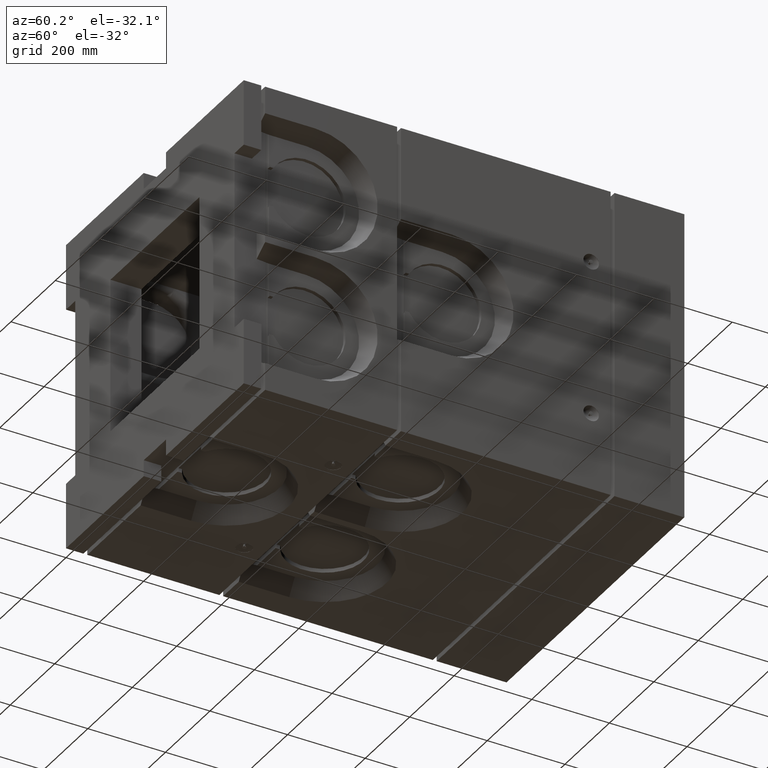
[diagram: clean part render]
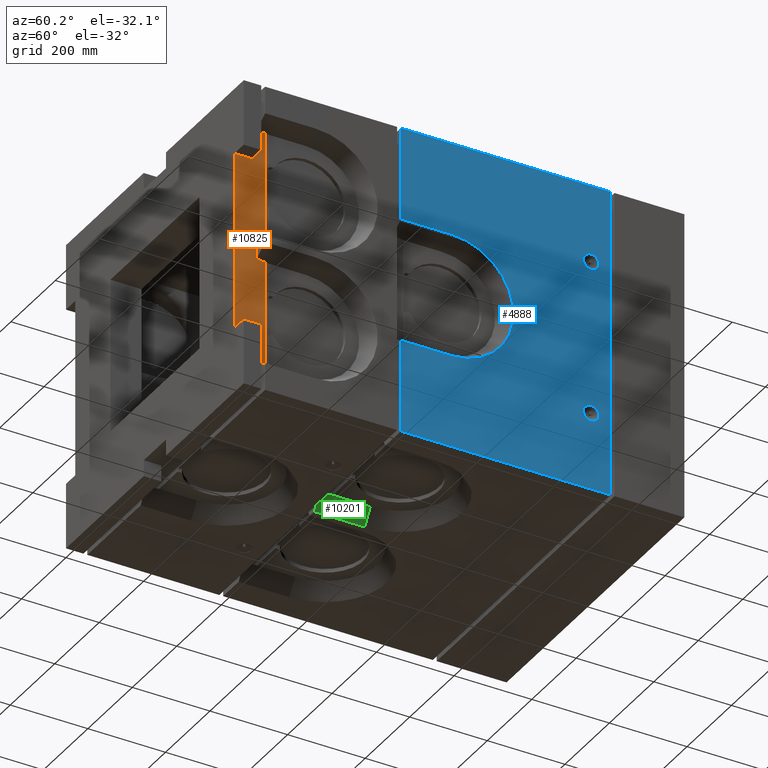
[diagram: same view with three faces highlighted in distinct colors, each labeled with its STEP entity id]
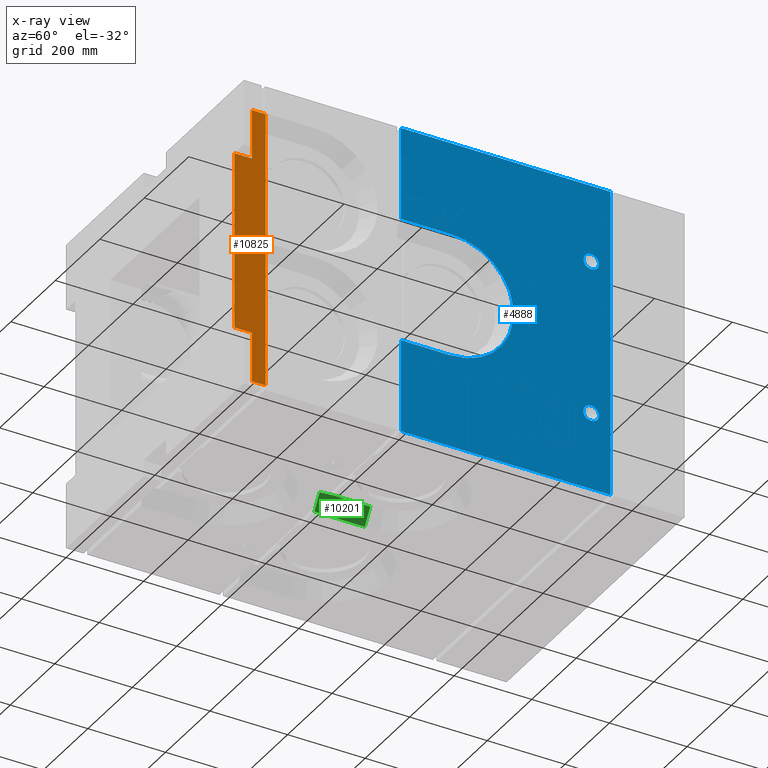
[diagram: x-ray of the same camera — body ghosted, the three highlighted faces saturated]
A machine part, auxiliary view with three faces highlighted in distinct colors.
The next image is the same camera in x-ray (body ghosted, the three faces saturated) — at least one of them is partly hidden behind the body in this view.
Their STEP definitions:

[orange] entity #10825 — the highlighted planar face has unit normal (1, 0, 0).
#22 = DIRECTION ( 'NONE',  ( 0.000000000000000000, 0.000000000000000000, -1.000000000000000000 ) ) ;
#688 = VECTOR ( 'NONE', #2612, 1000.000000000000000 ) ;
#950 = DIRECTION ( 'NONE',  ( 0.000000000000000000, 0.000000000000000000, -1.000000000000000000 ) ) ;
#2051 = LINE ( 'NONE', #26406, #688 ) ;
#2274 = VERTEX_POINT ( 'NONE', #20068 ) ;
#2612 = DIRECTION ( 'NONE',  ( -0.000000000000000000, 1.000000000000000000, -0.000000000000000000 ) ) ;
#2895 = LINE ( 'NONE', #8653, #16009 ) ;
#2911 = DIRECTION ( 'NONE',  ( 1.000000000000000000, 0.000000000000000000, 0.000000000000000000 ) ) ;
#3329 = ORIENTED_EDGE ( 'NONE', *, *, #11539, .T. ) ;
#3465 = LINE ( 'NONE', #22449, #26083 ) ;
#3762 = CARTESIAN_POINT ( 'NONE',  ( 357.9999999999998295, 79.99999999999998579, -358.0000000000001705 ) ) ;
#3853 = VECTOR ( 'NONE', #19615, 1000.000000000000000 ) ;
#3964 = VERTEX_POINT ( 'NONE', #19888 ) ;
#4665 = VECTOR ( 'NONE', #22, 1000.000000000000000 ) ;
#6412 = LINE ( 'NONE', #6477, #4665 ) ;
#6477 = CARTESIAN_POINT ( 'NONE',  ( 357.9999999999998295, 44.99999999999998579, 357.9999999999998863 ) ) ;
#6901 = VERTEX_POINT ( 'NONE', #16057 ) ;
#7357 = CARTESIAN_POINT ( 'NONE',  ( 357.9999999999998295, -1.387778780781445676E-14, 229.9999999999998295 ) ) ;
#7852 = ORIENTED_EDGE ( 'NONE', *, *, #24863, .F. ) ;
#7935 = CARTESIAN_POINT ( 'NONE',  ( 357.9999999999998295, 79.99999999999998579, 357.9999999999998863 ) ) ;
#8081 = EDGE_CURVE ( 'NONE', #21889, #21266, #3465, .T. ) ;
#8444 = CARTESIAN_POINT ( 'NONE',  ( 357.9999999999998295, 44.99999999999998579, -358.0000000000001705 ) ) ;
#8503 = VECTOR ( 'NONE', #10500, 1000.000000000000000 ) ;
#8653 = CARTESIAN_POINT ( 'NONE',  ( 357.9999999999998295, 44.99999999999998579, 357.9999999999998863 ) ) ;
#9481 = CARTESIAN_POINT ( 'NONE',  ( 357.9999999999998295, -1.387778780781445676E-14, -230.0000000000001421 ) ) ;
#10492 = EDGE_CURVE ( 'NONE', #6901, #3964, #11259, .T. ) ;
#10500 = DIRECTION ( 'NONE',  ( -0.000000000000000000, 1.000000000000000000, -0.000000000000000000 ) ) ;
#10825 = ADVANCED_FACE ( 'NONE', ( #25149 ), #26886, .T. ) ;
#11191 = VERTEX_POINT ( 'NONE', #20806 ) ;
#11259 = LINE ( 'NONE', #9481, #15651 ) ;
#11312 = CARTESIAN_POINT ( 'NONE',  ( 357.9999999999998295, -1.387778780781445676E-14, -230.0000000000001421 ) ) ;
#11431 = CARTESIAN_POINT ( 'NONE',  ( 357.9999999999998295, 44.99999999999998579, 357.9999999999998863 ) ) ;
#11460 = DIRECTION ( 'NONE',  ( -0.000000000000000000, 1.000000000000000000, -0.000000000000000000 ) ) ;
#11539 = EDGE_CURVE ( 'NONE', #3964, #2274, #6412, .T. ) ;
#11848 = ORIENTED_EDGE ( 'NONE', *, *, #14320, .T. ) ;
#13159 = AXIS2_PLACEMENT_3D ( 'NONE', #11431, #2911, #950 ) ;
#14320 = EDGE_CURVE ( 'NONE', #2274, #20858, #27469, .T. ) ;
#14420 = ORIENTED_EDGE ( 'NONE', *, *, #26198, .T. ) ;
#14681 = CARTESIAN_POINT ( 'NONE',  ( 357.9999999999998295, 44.99999999999998579, 357.9999999999998863 ) ) ;
#14931 = ORIENTED_EDGE ( 'NONE', *, *, #23697, .F. ) ;
#15157 = DIRECTION ( 'NONE',  ( 0.000000000000000000, 0.000000000000000000, -1.000000000000000000 ) ) ;
#15600 = ORIENTED_EDGE ( 'NONE', *, *, #10492, .T. ) ;
#15651 = VECTOR ( 'NONE', #11460, 1000.000000000000000 ) ;
#15941 = LINE ( 'NONE', #11312, #3853 ) ;
#16009 = VECTOR ( 'NONE', #15157, 1000.000000000000000 ) ;
#16050 = ORIENTED_EDGE ( 'NONE', *, *, #8081, .F. ) ;
#16057 = CARTESIAN_POINT ( 'NONE',  ( 357.9999999999998295, -1.387778780781445676E-14, -230.0000000000001421 ) ) ;
#16110 = DIRECTION ( 'NONE',  ( -0.000000000000000000, 1.000000000000000000, -0.000000000000000000 ) ) ;
#16315 = EDGE_CURVE ( 'NONE', #21266, #20858, #22361, .T. ) ;
#16976 = VECTOR ( 'NONE', #22951, 1000.000000000000000 ) ;
#18463 = VERTEX_POINT ( 'NONE', #7357 ) ;
#19615 = DIRECTION ( 'NONE',  ( 0.000000000000000000, 0.000000000000000000, 1.000000000000000000 ) ) ;
#19888 = CARTESIAN_POINT ( 'NONE',  ( 357.9999999999998295, 44.99999999999998579, -229.9999999999999147 ) ) ;
#20068 = CARTESIAN_POINT ( 'NONE',  ( 357.9999999999998295, 44.99999999999998579, -358.0000000000001705 ) ) ;
#20561 = CARTESIAN_POINT ( 'NONE',  ( 357.9999999999998295, 79.99999999999998579, 357.9999999999998295 ) ) ;
#20806 = CARTESIAN_POINT ( 'NONE',  ( 357.9999999999998295, 44.99999999999998579, 229.9999999999998295 ) ) ;
#20858 = VERTEX_POINT ( 'NONE', #3762 ) ;
#21266 = VERTEX_POINT ( 'NONE', #20561 ) ;
#21889 = VERTEX_POINT ( 'NONE', #14681 ) ;
#22361 = LINE ( 'NONE', #7935, #16976 ) ;
#22449 = CARTESIAN_POINT ( 'NONE',  ( 357.9999999999998295, 44.99999999999998579, 357.9999999999998863 ) ) ;
#22842 = EDGE_LOOP ( 'NONE', ( #27669, #16050, #14420, #7852, #14931, #15600, #3329, #11848 ) ) ;
#22951 = DIRECTION ( 'NONE',  ( 0.000000000000000000, 0.000000000000000000, -1.000000000000000000 ) ) ;
#23697 = EDGE_CURVE ( 'NONE', #6901, #18463, #15941, .T. ) ;
#24863 = EDGE_CURVE ( 'NONE', #18463, #11191, #2051, .T. ) ;
#25149 = FACE_OUTER_BOUND ( 'NONE', #22842, .T. ) ;
#26083 = VECTOR ( 'NONE', #16110, 1000.000000000000000 ) ;
#26198 = EDGE_CURVE ( 'NONE', #21889, #11191, #2895, .T. ) ;
#26406 = CARTESIAN_POINT ( 'NONE',  ( 357.9999999999998295, -1.387778780781445676E-14, 229.9999999999998295 ) ) ;
#26886 = PLANE ( 'NONE',  #13159 ) ;
#27469 = LINE ( 'NONE', #8444, #8503 ) ;
#27669 = ORIENTED_EDGE ( 'NONE', *, *, #16315, .F. ) ;

[blue] entity #4888 — the highlighted planar face has unit normal (-1, 0, 0).
#356 = LINE ( 'NONE', #9826, #19524 ) ;
#1461 = ORIENTED_EDGE ( 'NONE', *, *, #20605, .F. ) ;
#1655 = DIRECTION ( 'NONE',  ( 0.000000000000000000, -1.000000000000000000, -0.000000000000000000 ) ) ;
#2222 = CARTESIAN_POINT ( 'NONE',  ( 399.9999999999999432, 534.9999999999998863, -160.0000000000000853 ) ) ;
#2426 = EDGE_CURVE ( 'NONE', #3461, #27775, #25140, .T. ) ;
#3198 = VECTOR ( 'NONE', #10454, 1000.000000000000000 ) ;
#3461 = VERTEX_POINT ( 'NONE', #14014 ) ;
#3679 = DIRECTION ( 'NONE',  ( 0.000000000000000000, 1.000000000000000000, 0.000000000000000000 ) ) ;
#4108 = CARTESIAN_POINT ( 'NONE',  ( 399.9999999999999432, 404.9999999999999432, -399.9999999999999432 ) ) ;
#4888 = ADVANCED_FACE ( 'NONE', ( #23610, #4951, #15743 ), #12179, .F. ) ;
#4951 = FACE_BOUND ( 'NONE', #18459, .T. ) ;
#5124 = CARTESIAN_POINT ( 'NONE',  ( 399.9999999999999432, 894.9999999999997726, -180.0000000000000000 ) ) ;
#5236 = ORIENTED_EDGE ( 'NONE', *, *, #17907, .T. ) ;
#5749 = CARTESIAN_POINT ( 'NONE',  ( 399.9999999999999432, 284.9999999999999432, -160.0000000000000853 ) ) ;
#6612 = DIRECTION ( 'NONE',  ( 0.000000000000000000, 0.000000000000000000, 1.000000000000000000 ) ) ;
#6831 = DIRECTION ( 'NONE',  ( 0.000000000000000000, 0.000000000000000000, 1.000000000000000000 ) ) ;
#7006 = CARTESIAN_POINT ( 'NONE',  ( 399.9999999999999432, 534.9999999999998863, -5.551115123125782702E-14 ) ) ;
#7107 = EDGE_CURVE ( 'NONE', #3461, #16443, #15210, .T. ) ;
#7267 = CARTESIAN_POINT ( 'NONE',  ( 399.9999999999999432, 404.9999999999999432, 400.0000000000000000 ) ) ;
#7928 = CARTESIAN_POINT ( 'NONE',  ( 399.9999999999999432, 404.9999999999999432, -160.0000000000000853 ) ) ;
#7973 = CARTESIAN_POINT ( 'NONE',  ( 399.9999999999999432, 404.9999999999999432, 159.9999999999999716 ) ) ;
#8446 = AXIS2_PLACEMENT_3D ( 'NONE', #20773, #14277, #14168 ) ;
#9109 = EDGE_CURVE ( 'NONE', #16443, #17265, #26971, .T. ) ;
#9509 = ORIENTED_EDGE ( 'NONE', *, *, #9109, .T. ) ;
#9826 = CARTESIAN_POINT ( 'NONE',  ( 399.9999999999999432, 404.9999999999999432, 400.0000000000000000 ) ) ;
#9953 = EDGE_CURVE ( 'NONE', #16533, #16649, #12336, .T. ) ;
#10454 = DIRECTION ( 'NONE',  ( 0.000000000000000000, 0.000000000000000000, -1.000000000000000000 ) ) ;
#10538 = CARTESIAN_POINT ( 'NONE',  ( 399.9999999999999432, 944.9999999999998863, 400.0000000000000000 ) ) ;
#10751 = ORIENTED_EDGE ( 'NONE', *, *, #17206, .T. ) ;
#10882 = CARTESIAN_POINT ( 'NONE',  ( 399.9999999999999432, 944.9999999999998863, -399.9999999999999432 ) ) ;
#11268 = CARTESIAN_POINT ( 'NONE',  ( 399.9999999999999432, 894.9999999999997726, 199.9999999999999147 ) ) ;
#11509 = VECTOR ( 'NONE', #3679, 1000.000000000000000 ) ;
#12179 = PLANE ( 'NONE',  #8446 ) ;
#12336 = CIRCLE ( 'NONE', #12831, 160.0000000000000284 ) ;
#12515 = EDGE_CURVE ( 'NONE', #26960, #26960, #15066, .T. ) ;
#12831 = AXIS2_PLACEMENT_3D ( 'NONE', #7006, #21818, #6831 ) ;
#13058 = DIRECTION ( 'NONE',  ( -1.000000000000000000, -0.000000000000000000, -1.734723475976807403E-17 ) ) ;
#13060 = VECTOR ( 'NONE', #17176, 1000.000000000000000 ) ;
#13816 = ORIENTED_EDGE ( 'NONE', *, *, #2426, .F. ) ;
#13886 = LINE ( 'NONE', #14507, #11509 ) ;
#14014 = CARTESIAN_POINT ( 'NONE',  ( 399.9999999999999432, 944.9999999999998863, 400.0000000000000000 ) ) ;
#14168 = DIRECTION ( 'NONE',  ( 0.000000000000000000, 0.000000000000000000, 1.000000000000000000 ) ) ;
#14274 = EDGE_CURVE ( 'NONE', #17265, #16533, #13886, .T. ) ;
#14277 = DIRECTION ( 'NONE',  ( -1.000000000000000000, 0.000000000000000000, 0.000000000000000000 ) ) ;
#14507 = CARTESIAN_POINT ( 'NONE',  ( 399.9999999999999432, 534.9999999999998863, 159.9999999999999716 ) ) ;
#15066 = CIRCLE ( 'NONE', #25422, 20.00000000000001776 ) ;
#15210 = LINE ( 'NONE', #26870, #24008 ) ;
#15595 = EDGE_CURVE ( 'NONE', #23898, #23898, #19703, .T. ) ;
#15738 = VERTEX_POINT ( 'NONE', #7928 ) ;
#15743 = FACE_OUTER_BOUND ( 'NONE', #22019, .T. ) ;
#15982 = EDGE_LOOP ( 'NONE', ( #23140 ) ) ;
#16443 = VERTEX_POINT ( 'NONE', #7267 ) ;
#16533 = VERTEX_POINT ( 'NONE', #24702 ) ;
#16649 = VERTEX_POINT ( 'NONE', #2222 ) ;
#17167 = LINE ( 'NONE', #5749, #23319 ) ;
#17176 = DIRECTION ( 'NONE',  ( 0.000000000000000000, 0.000000000000000000, -1.000000000000000000 ) ) ;
#17206 = EDGE_CURVE ( 'NONE', #15738, #22258, #356, .T. ) ;
#17265 = VERTEX_POINT ( 'NONE', #7973 ) ;
#17695 = VECTOR ( 'NONE', #23778, 1000.000000000000000 ) ;
#17907 = EDGE_CURVE ( 'NONE', #16649, #15738, #17167, .T. ) ;
#18013 = CARTESIAN_POINT ( 'NONE',  ( 399.9999999999999432, 894.9999999999997726, -200.0000000000000000 ) ) ;
#18207 = ORIENTED_EDGE ( 'NONE', *, *, #7107, .T. ) ;
#18459 = EDGE_LOOP ( 'NONE', ( #25458 ) ) ;
#19083 = LINE ( 'NONE', #23692, #17695 ) ;
#19439 = DIRECTION ( 'NONE',  ( 0.000000000000000000, 0.000000000000000000, -1.000000000000000000 ) ) ;
#19524 = VECTOR ( 'NONE', #19439, 1000.000000000000000 ) ;
#19703 = CIRCLE ( 'NONE', #27519, 20.00000000000001776 ) ;
#20385 = DIRECTION ( 'NONE',  ( -0.000000000000000000, -1.000000000000000000, -0.000000000000000000 ) ) ;
#20605 = EDGE_CURVE ( 'NONE', #27775, #22258, #19083, .T. ) ;
#20773 = CARTESIAN_POINT ( 'NONE',  ( 399.9999999999999432, 979.9999999999998863, 400.0000000000000000 ) ) ;
#21138 = CARTESIAN_POINT ( 'NONE',  ( 399.9999999999999432, 404.9999999999999432, 400.0000000000000000 ) ) ;
#21818 = DIRECTION ( 'NONE',  ( -1.000000000000000000, -0.000000000000000000, -0.000000000000000000 ) ) ;
#22019 = EDGE_LOOP ( 'NONE', ( #5236, #10751, #1461, #13816, #18207, #9509, #23599, #26929 ) ) ;
#22191 = DIRECTION ( 'NONE',  ( 0.000000000000000000, 0.000000000000000000, 1.000000000000000000 ) ) ;
#22258 = VERTEX_POINT ( 'NONE', #4108 ) ;
#23140 = ORIENTED_EDGE ( 'NONE', *, *, #15595, .T. ) ;
#23319 = VECTOR ( 'NONE', #1655, 1000.000000000000000 ) ;
#23599 = ORIENTED_EDGE ( 'NONE', *, *, #14274, .T. ) ;
#23610 = FACE_BOUND ( 'NONE', #15982, .T. ) ;
#23692 = CARTESIAN_POINT ( 'NONE',  ( 399.9999999999999432, 979.9999999999998863, -399.9999999999999432 ) ) ;
#23778 = DIRECTION ( 'NONE',  ( -0.000000000000000000, -1.000000000000000000, -0.000000000000000000 ) ) ;
#23898 = VERTEX_POINT ( 'NONE', #5124 ) ;
#24008 = VECTOR ( 'NONE', #20385, 1000.000000000000000 ) ;
#24702 = CARTESIAN_POINT ( 'NONE',  ( 399.9999999999999432, 534.9999999999998863, 159.9999999999999716 ) ) ;
#24769 = CARTESIAN_POINT ( 'NONE',  ( 399.9999999999999432, 894.9999999999997726, 219.9999999999999432 ) ) ;
#25140 = LINE ( 'NONE', #10538, #3198 ) ;
#25422 = AXIS2_PLACEMENT_3D ( 'NONE', #11268, #13058, #6612 ) ;
#25458 = ORIENTED_EDGE ( 'NONE', *, *, #12515, .T. ) ;
#26583 = DIRECTION ( 'NONE',  ( -1.000000000000000000, -0.000000000000000000, -1.734723475976807403E-17 ) ) ;
#26870 = CARTESIAN_POINT ( 'NONE',  ( 399.9999999999999432, 979.9999999999998863, 400.0000000000000000 ) ) ;
#26929 = ORIENTED_EDGE ( 'NONE', *, *, #9953, .T. ) ;
#26960 = VERTEX_POINT ( 'NONE', #24769 ) ;
#26971 = LINE ( 'NONE', #21138, #13060 ) ;
#27519 = AXIS2_PLACEMENT_3D ( 'NONE', #18013, #26583, #22191 ) ;
#27775 = VERTEX_POINT ( 'NONE', #10882 ) ;

[green] entity #10201 — the highlighted planar face has unit normal (-0.848, 0, 0.5299).
#2414 = CARTESIAN_POINT ( 'NONE',  ( -105.1339149082395608, 404.9999999999999432, -584.2527794913294201 ) ) ;
#2453 = CARTESIAN_POINT ( 'NONE',  ( 33.18041526108228823, 390.0899245010617733, -362.9035810601798744 ) ) ;
#2839 = CARTESIAN_POINT ( 'NONE',  ( 9.999999999999953815, 404.9999999999999432, -399.9999999999999432 ) ) ;
#3882 = ORIENTED_EDGE ( 'NONE', *, *, #27432, .F. ) ;
#4956 = CARTESIAN_POINT ( 'NONE',  ( 10.00000000000000888, 534.9999999999998863, -399.9999999999999432 ) ) ;
#5184 = DIRECTION ( 'NONE',  ( 2.220446049250313081E-16, 1.000000000000000000, 0.000000000000000000 ) ) ;
#6012 = DIRECTION ( 'NONE',  ( -0.5299192642332060110, 0.000000000000000000, -0.8480480961564252906 ) ) ;
#6955 = PLANE ( 'NONE',  #8005 ) ;
#7573 = VERTEX_POINT ( 'NONE', #23185 ) ;
#8005 = AXIS2_PLACEMENT_3D ( 'NONE', #4956, #11261, #15612 ) ;
#8289 = FACE_OUTER_BOUND ( 'NONE', #25595, .T. ) ;
#8795 = CARTESIAN_POINT ( 'NONE',  ( 34.99477407637319004, 534.9999999999998863, -359.9999999999999432 ) ) ;
#9468 = EDGE_CURVE ( 'NONE', #13550, #17558, #25610, .T. ) ;
#9633 = EDGE_CURVE ( 'NONE', #16421, #7573, #11664, .T. ) ;
#10201 = ADVANCED_FACE ( 'NONE', ( #8289 ), #6955, .F. ) ;
#10585 = CARTESIAN_POINT ( 'NONE',  ( 33.74503537255451846, 404.9999999999999432, -361.9999999999999432 ) ) ;
#11233 = ORIENTED_EDGE ( 'NONE', *, *, #13955, .T. ) ;
#11261 = DIRECTION ( 'NONE',  ( -0.8480480961564252906, 1.883045044684784401E-16, 0.5299192642332060110 ) ) ;
#11650 = VECTOR ( 'NONE', #23973, 1000.000000000000227 ) ;
#11664 = LINE ( 'NONE', #27535, #22133 ) ;
#12846 = VERTEX_POINT ( 'NONE', #10585 ) ;
#13550 = VERTEX_POINT ( 'NONE', #21454 ) ;
#13955 = EDGE_CURVE ( 'NONE', #12846, #16421, #27527, .T. ) ;
#14947 = VECTOR ( 'NONE', #6012, 1000.000000000000114 ) ;
#15612 = DIRECTION ( 'NONE',  ( 0.5299192642332060110, 0.000000000000000000, 0.8480480961564252906 ) ) ;
#16421 = VERTEX_POINT ( 'NONE', #2839 ) ;
#16728 = DIRECTION ( 'NONE',  ( 2.220446049250313081E-16, 1.000000000000000000, -0.000000000000000000 ) ) ;
#17558 = VERTEX_POINT ( 'NONE', #8795 ) ;
#18555 = LINE ( 'NONE', #18752, #27057 ) ;
#18752 = CARTESIAN_POINT ( 'NONE',  ( 10.00000000000000888, 534.9999999999998863, -399.9999999999999432 ) ) ;
#20094 = EDGE_CURVE ( 'NONE', #12846, #13550, #22151, .T. ) ;
#21005 = DIRECTION ( 'NONE',  ( -0.5299192642332060110, 1.176657136688255025E-16, -0.8480480961564252906 ) ) ;
#21454 = CARTESIAN_POINT ( 'NONE',  ( 34.99477407637319004, 438.0021868673696304, -359.9999999999999432 ) ) ;
#22038 = ORIENTED_EDGE ( 'NONE', *, *, #9633, .T. ) ;
#22133 = VECTOR ( 'NONE', #16728, 1000.000000000000000 ) ;
#22151 = LINE ( 'NONE', #2453, #11650 ) ;
#23185 = CARTESIAN_POINT ( 'NONE',  ( 9.999999999999953815, 534.9999999999998863, -399.9999999999999432 ) ) ;
#23973 = DIRECTION ( 'NONE',  ( 0.03777203940160007989, 0.9974564273990266239, 0.06044789888667913280 ) ) ;
#24539 = VECTOR ( 'NONE', #5184, 1000.000000000000000 ) ;
#24639 = CARTESIAN_POINT ( 'NONE',  ( 34.99477407637319004, 534.9999999999998863, -359.9999999999999432 ) ) ;
#25001 = ORIENTED_EDGE ( 'NONE', *, *, #20094, .F. ) ;
#25595 = EDGE_LOOP ( 'NONE', ( #11233, #22038, #3882, #26003, #25001 ) ) ;
#25610 = LINE ( 'NONE', #24639, #24539 ) ;
#26003 = ORIENTED_EDGE ( 'NONE', *, *, #9468, .F. ) ;
#27057 = VECTOR ( 'NONE', #21005, 1000.000000000000114 ) ;
#27432 = EDGE_CURVE ( 'NONE', #17558, #7573, #18555, .T. ) ;
#27527 = LINE ( 'NONE', #2414, #14947 ) ;
#27535 = CARTESIAN_POINT ( 'NONE',  ( 10.00000000000000888, 534.9999999999998863, -399.9999999999999432 ) ) ;